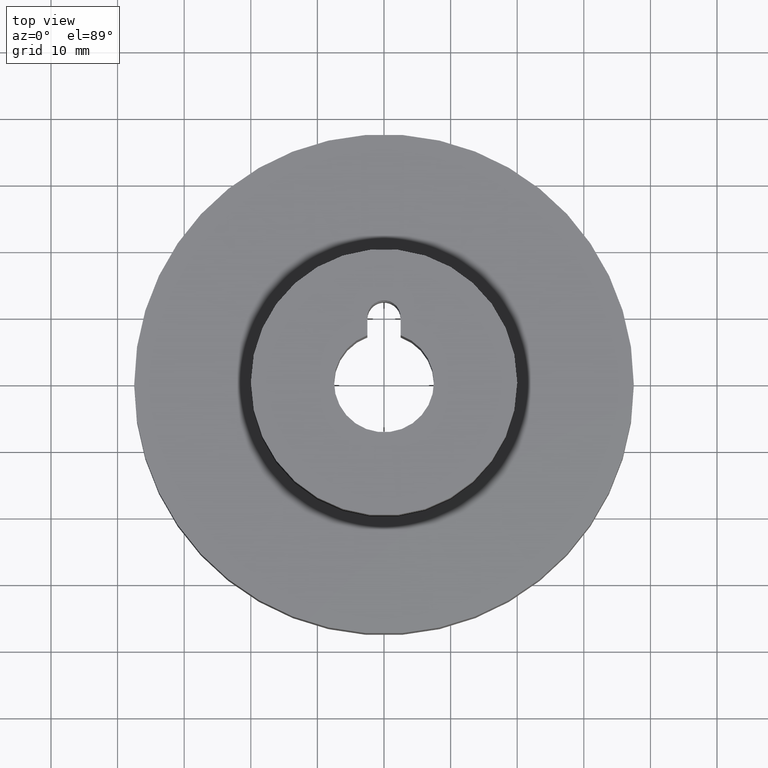
[diagram: clean part render]
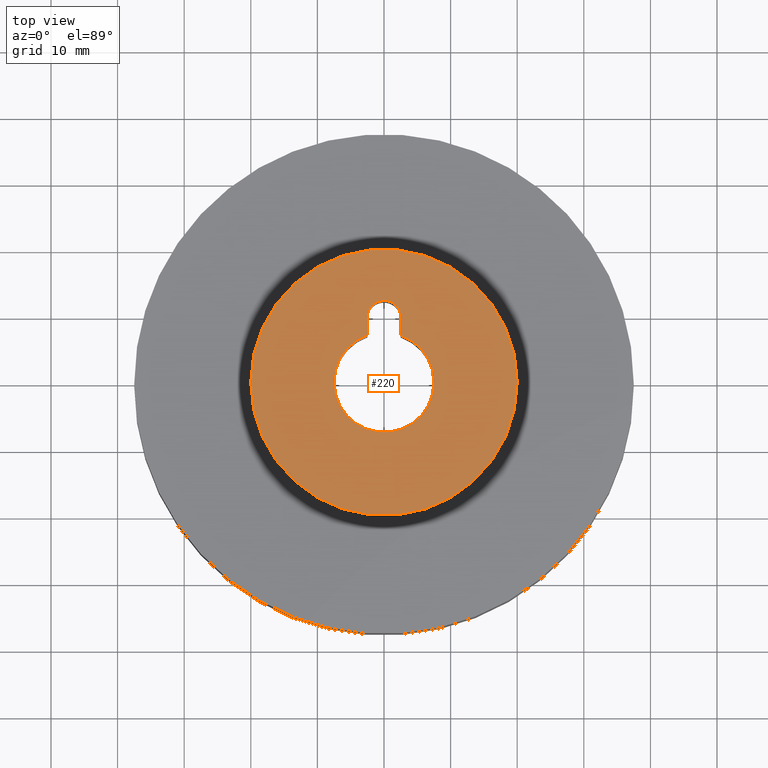
[diagram: same view with one face highlighted and labeled with its STEP entity id]
A machine part, top view. The second image highlights one B-rep face of the part: STEP entity #220.
In plain terms, the highlighted planar face has unit normal (0, 0, 1).
Its self-contained STEP definition (entity closure, byte-faithful):
#220 = ADVANCED_FACE( '', ( #259, #260 ), #261, .T. );
#259 = FACE_OUTER_BOUND( '', #331, .T. );
#260 = FACE_BOUND( '', #332, .T. );
#261 = PLANE( '', #333 );
#331 = EDGE_LOOP( '', ( #411 ) );
#332 = EDGE_LOOP( '', ( #412, #413, #414, #415 ) );
#333 = AXIS2_PLACEMENT_3D( '', #416, #417, #418 );
#411 = ORIENTED_EDGE( '', *, *, #567, .T. );
#412 = ORIENTED_EDGE( '', *, *, #568, .T. );
#413 = ORIENTED_EDGE( '', *, *, #569, .T. );
#414 = ORIENTED_EDGE( '', *, *, #570, .T. );
#415 = ORIENTED_EDGE( '', *, *, #571, .T. );
#416 = CARTESIAN_POINT( '', ( 0.000000000000000, 0.000000000000000, 29.0000000000000 ) );
#417 = DIRECTION( '', ( 0.000000000000000, 0.000000000000000, 1.00000000000000 ) );
#418 = DIRECTION( '', ( 1.00000000000000, 0.000000000000000, 0.000000000000000 ) );
#567 = EDGE_CURVE( '', #617, #617, #618, .T. );
#568 = EDGE_CURVE( '', #619, #620, #621, .T. );
#569 = EDGE_CURVE( '', #620, #622, #623, .F. );
#570 = EDGE_CURVE( '', #622, #624, #625, .T. );
#571 = EDGE_CURVE( '', #624, #619, #626, .F. );
#617 = VERTEX_POINT( '', #697 );
#618 = CIRCLE( '', #698, 20.0000000000000 );
#619 = VERTEX_POINT( '', #699 );
#620 = VERTEX_POINT( '', #700 );
#621 = LINE( '', #701, #702 );
#622 = VERTEX_POINT( '', #703 );
#623 = CIRCLE( '', #704, 2.50000000000000 );
#624 = VERTEX_POINT( '', #705 );
#625 = LINE( '', #706, #707 );
#626 = CIRCLE( '', #708, 7.50000000000000 );
#697 = CARTESIAN_POINT( '', ( 20.0000000000000, 0.000000000000000, 29.0000000000000 ) );
#698 = AXIS2_PLACEMENT_3D( '', #945, #946, #947 );
#699 = CARTESIAN_POINT( '', ( -2.50000000000001, 7.07106781186547, 29.0000000000000 ) );
#700 = CARTESIAN_POINT( '', ( -2.50000000000000, 9.80000000000000, 29.0000000000000 ) );
#701 = CARTESIAN_POINT( '', ( -2.50000000000000, 1.53075794227797E-016, 29.0000000000000 ) );
#702 = VECTOR( '', #948, 1000.00000000000 );
#703 = CARTESIAN_POINT( '', ( 2.50000000000000, 9.80000000000000, 29.0000000000000 ) );
#704 = AXIS2_PLACEMENT_3D( '', #949, #950, #951 );
#705 = CARTESIAN_POINT( '', ( 2.50000000000000, 7.07106781186548, 29.0000000000000 ) );
#706 = CARTESIAN_POINT( '', ( 2.50000000000000, -1.53075794227797E-016, 29.0000000000000 ) );
#707 = VECTOR( '', #952, 1000.00000000000 );
#708 = AXIS2_PLACEMENT_3D( '', #953, #954, #955 );
#945 = CARTESIAN_POINT( '', ( 0.000000000000000, 0.000000000000000, 29.0000000000000 ) );
#946 = DIRECTION( '', ( 0.000000000000000, 0.000000000000000, 1.00000000000000 ) );
#947 = DIRECTION( '', ( 1.00000000000000, 0.000000000000000, 0.000000000000000 ) );
#948 = DIRECTION( '', ( 6.12303176911189E-017, 1.00000000000000, -0.000000000000000 ) );
#949 = CARTESIAN_POINT( '', ( 0.000000000000000, 9.80000000000000, 29.0000000000000 ) );
#950 = DIRECTION( '', ( 0.000000000000000, 0.000000000000000, 1.00000000000000 ) );
#951 = DIRECTION( '', ( 1.00000000000000, 0.000000000000000, -0.000000000000000 ) );
#952 = DIRECTION( '', ( -6.12303176911189E-017, -1.00000000000000, 0.000000000000000 ) );
#953 = CARTESIAN_POINT( '', ( 0.000000000000000, 0.000000000000000, 29.0000000000000 ) );
#954 = DIRECTION( '', ( 0.000000000000000, 0.000000000000000, 1.00000000000000 ) );
#955 = DIRECTION( '', ( 1.00000000000000, 0.000000000000000, -0.000000000000000 ) );